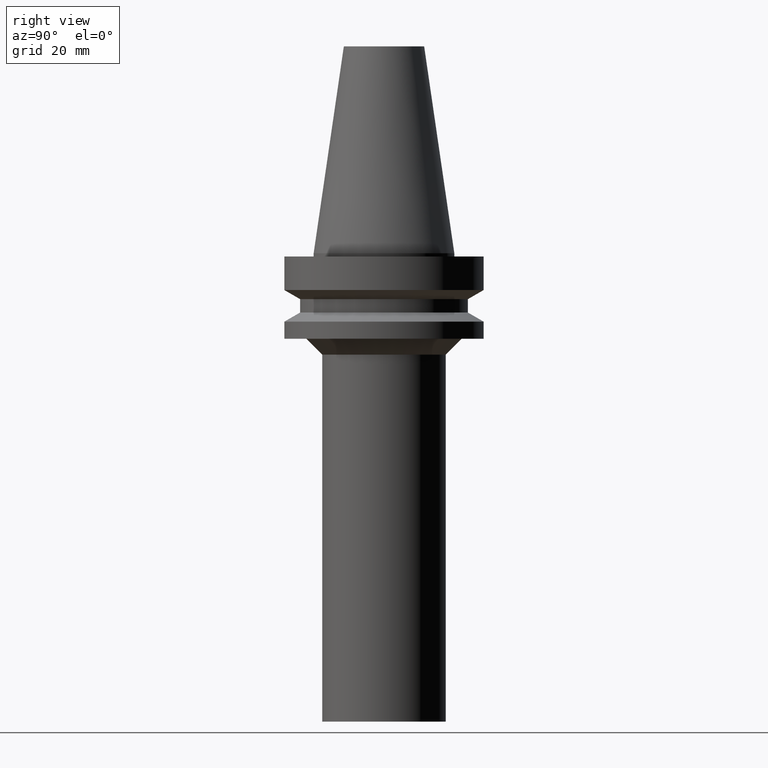
[diagram: clean part render]
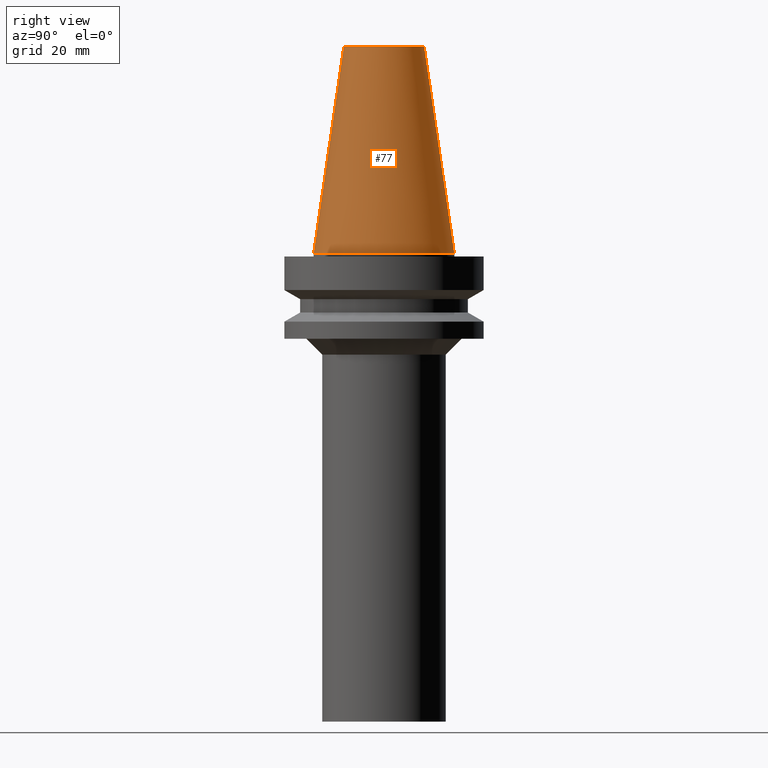
[diagram: same view with one face highlighted and labeled with its STEP entity id]
A machine part, right view. The second image highlights one B-rep face of the part: STEP entity #77.
In plain terms, the highlighted conical surface has half-angle 8.297 deg.
Its self-contained STEP definition (entity closure, byte-faithful):
#77=ADVANCED_FACE('',(#93,#94),#95,.T.);
#93=FACE_BOUND('',#130,.T.);
#94=FACE_BOUND('',#131,.T.);
#95=CONICAL_SURFACE('',#132,17.4562500026599,0.144812498159292);
#130=EDGE_LOOP('',(#171));
#131=EDGE_LOOP('',(#172));
#132=AXIS2_PLACEMENT_3D('',#173,#174,#175);
#171=ORIENTED_EDGE('',*,*,#228,.F.);
#172=ORIENTED_EDGE('',*,*,#227,.T.);
#173=CARTESIAN_POINT('',(-2.00229751660592E-015,-4.00459503321185E-015,32.7));
#174=DIRECTION('',(6.12323399573677E-017,1.22464679914735E-016,-1.0));
#175=DIRECTION('',(-1.23259516440783E-032,1.0,1.22464679914735E-016));
#227=EDGE_CURVE('',#240,#240,#241,.T.);
#228=EDGE_CURVE('',#242,#242,#243,.T.);
#240=VERTEX_POINT('',#264);
#241=CIRCLE('',#265,12.6875000053197);
#242=VERTEX_POINT('',#266);
#243=CIRCLE('',#267,22.225);
#264=CARTESIAN_POINT('',(-4.00459503321185E-015,12.6875000053197,65.4));
#265=AXIS2_PLACEMENT_3D('',#289,#290,#291);
#266=CARTESIAN_POINT('',(-4.76010997148954E-031,22.225,6.02177751110499E-015));
#267=AXIS2_PLACEMENT_3D('',#292,#293,#294);
#289=CARTESIAN_POINT('',(-4.00459503321185E-015,-8.00919006642369E-015,65.4));
#290=DIRECTION('',(6.12323399573677E-017,1.22464679914735E-016,-1.0));
#291=DIRECTION('',(-1.23259516440783E-032,1.0,1.22464679914735E-016));
#292=CARTESIAN_POINT('',(0.0,0.0,0.0));
#293=DIRECTION('',(6.12323399573677E-017,1.22464679914735E-016,-1.0));
#294=DIRECTION('',(-1.23259516440783E-032,1.0,1.22464679914735E-016));